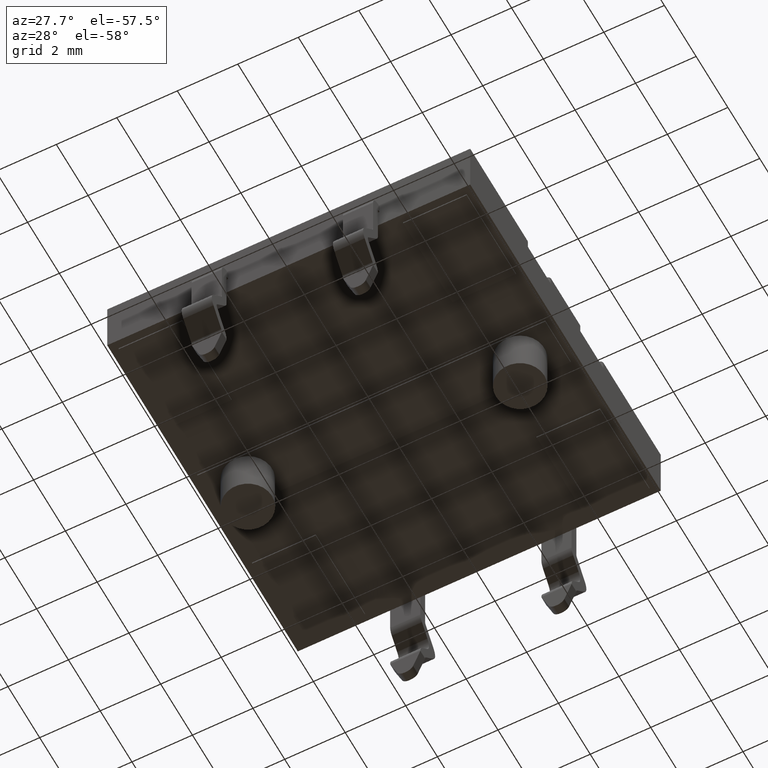
[diagram: clean part render]
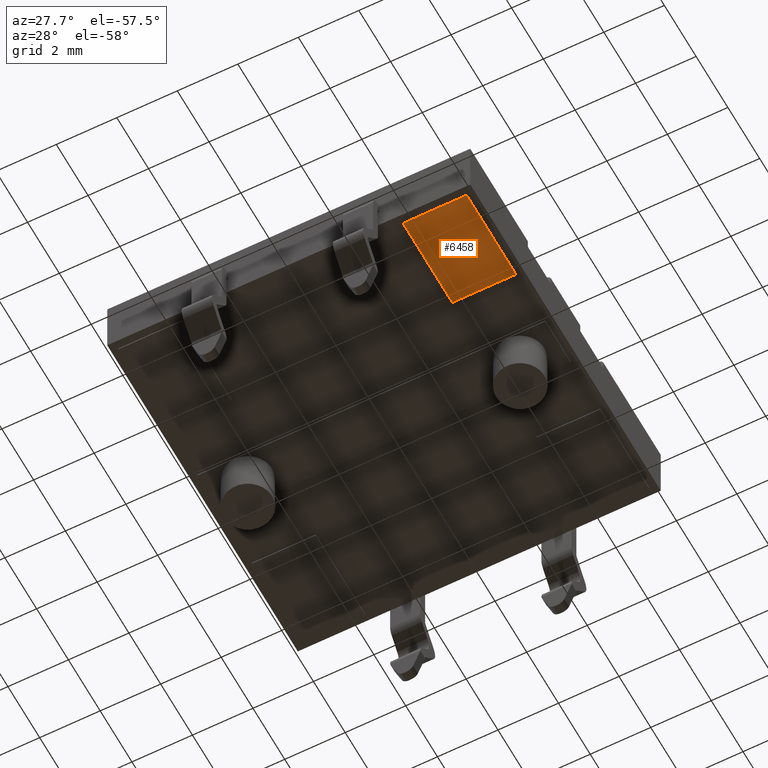
[diagram: same view with one face highlighted and labeled with its STEP entity id]
A machine part, auxiliary view. The second image highlights one B-rep face of the part: STEP entity #6458.
In plain terms, the highlighted planar face has unit normal (-0, -0, -1).
Its self-contained STEP definition (entity closure, byte-faithful):
#334=PLANE('',#6988);
#549=FACE_OUTER_BOUND('',#957,.T.);
#957=EDGE_LOOP('',(#4936,#4937,#4938,#4939));
#1517=LINE('',#10288,#2046);
#1520=LINE('',#10294,#2049);
#1523=LINE('',#10300,#2052);
#1526=LINE('',#10304,#2055);
#2046=VECTOR('',#8247,0.393700787401575);
#2049=VECTOR('',#8252,0.393700787401575);
#2052=VECTOR('',#8257,0.393700787401575);
#2055=VECTOR('',#8262,0.393700787401575);
#2904=VERTEX_POINT('',#10285);
#2905=VERTEX_POINT('',#10287);
#2907=VERTEX_POINT('',#10293);
#2909=VERTEX_POINT('',#10299);
#3626=EDGE_CURVE('',#2905,#2904,#1517,.T.);
#3629=EDGE_CURVE('',#2907,#2905,#1520,.T.);
#3632=EDGE_CURVE('',#2909,#2907,#1523,.T.);
#3635=EDGE_CURVE('',#2904,#2909,#1526,.T.);
#4936=ORIENTED_EDGE('',*,*,#3635,.T.);
#4937=ORIENTED_EDGE('',*,*,#3632,.T.);
#4938=ORIENTED_EDGE('',*,*,#3629,.T.);
#4939=ORIENTED_EDGE('',*,*,#3626,.T.);
#6458=ADVANCED_FACE('',(#549),#334,.T.);
#6988=AXIS2_PLACEMENT_3D('',#10305,#8263,#8264);
#8247=DIRECTION('',(-5.55111512312578E-17,-1.,1.11022302462516E-16));
#8252=DIRECTION('',(1.,-5.55111512312578E-17,-8.32667268468867E-17));
#8257=DIRECTION('',(5.55111512312578E-17,1.,-1.11022302462516E-16));
#8262=DIRECTION('',(-1.,5.55111512312578E-17,8.32667268468867E-17));
#8263=DIRECTION('center_axis',(-8.32667268468867E-17,-1.11022302462516E-16,
-1.));
#8264=DIRECTION('ref_axis',(-1.,5.55111512312578E-17,8.32667268468867E-17));
#10285=CARTESIAN_POINT('',(0.0269148632527798,-0.421410348884667,0.0642643001110924));
#10287=CARTESIAN_POINT('',(0.0269148632527798,-0.299363104790178,0.0642643001110924));
#10288=CARTESIAN_POINT('',(0.0269148632527798,-0.299363104790178,0.0642643001110924));
#10293=CARTESIAN_POINT('',(-0.0557623021015509,-0.299363104790178,0.0642643001110924));
#10294=CARTESIAN_POINT('',(-0.0557623021015509,-0.299363104790178,0.0642643001110924));
#10299=CARTESIAN_POINT('',(-0.0557623021015509,-0.421410348884667,0.0642643001110924));
#10300=CARTESIAN_POINT('',(-0.0557623021015509,-0.421410348884667,0.0642643001110924));
#10304=CARTESIAN_POINT('',(0.0269148632527798,-0.421410348884667,0.0642643001110924));
#10305=CARTESIAN_POINT('Origin',(-0.0144237194243856,-0.360386726837423,
0.0642643001110924));